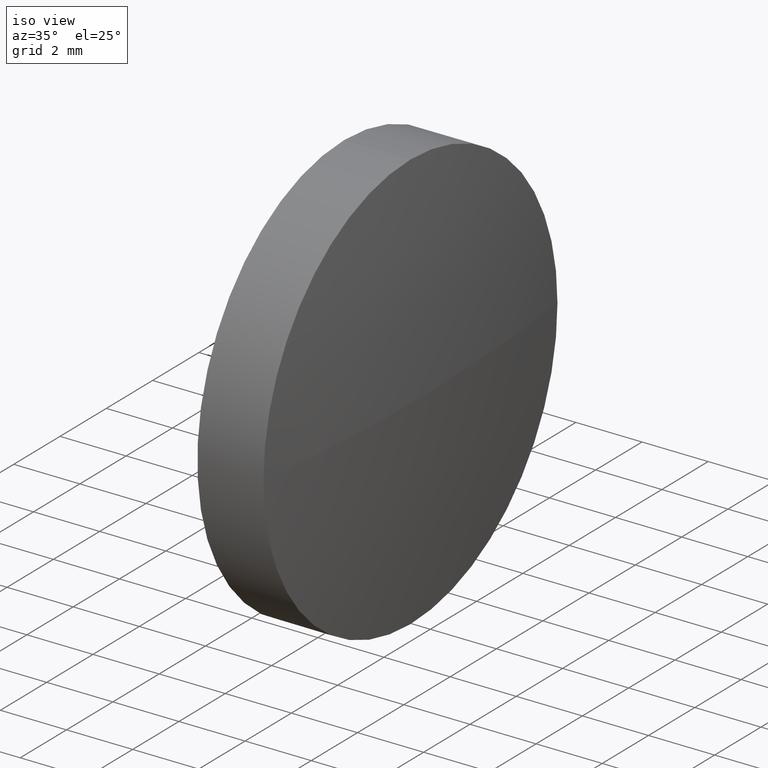
[diagram: clean part render]
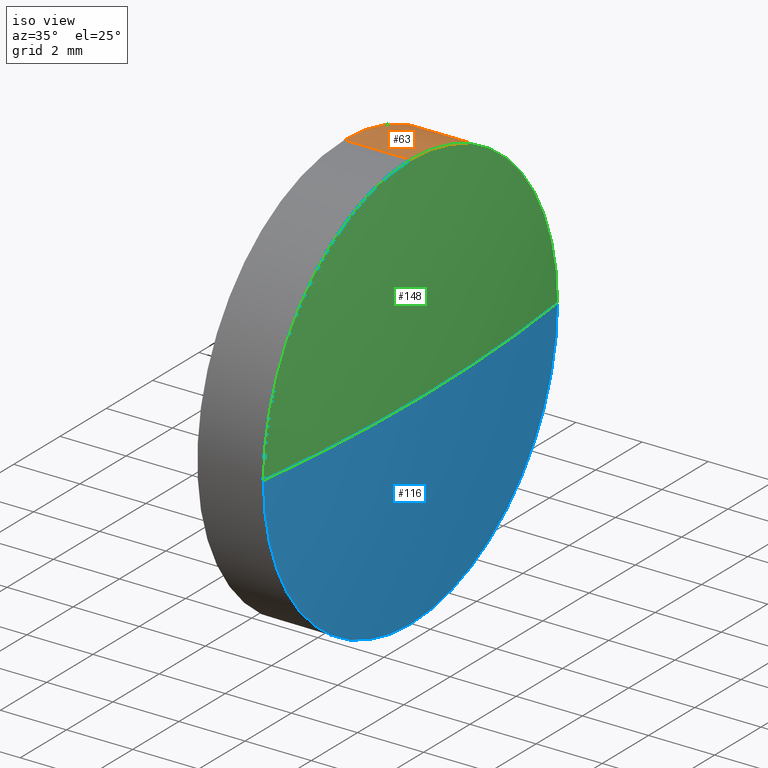
[diagram: same view with three faces highlighted in distinct colors, each labeled with its STEP entity id]
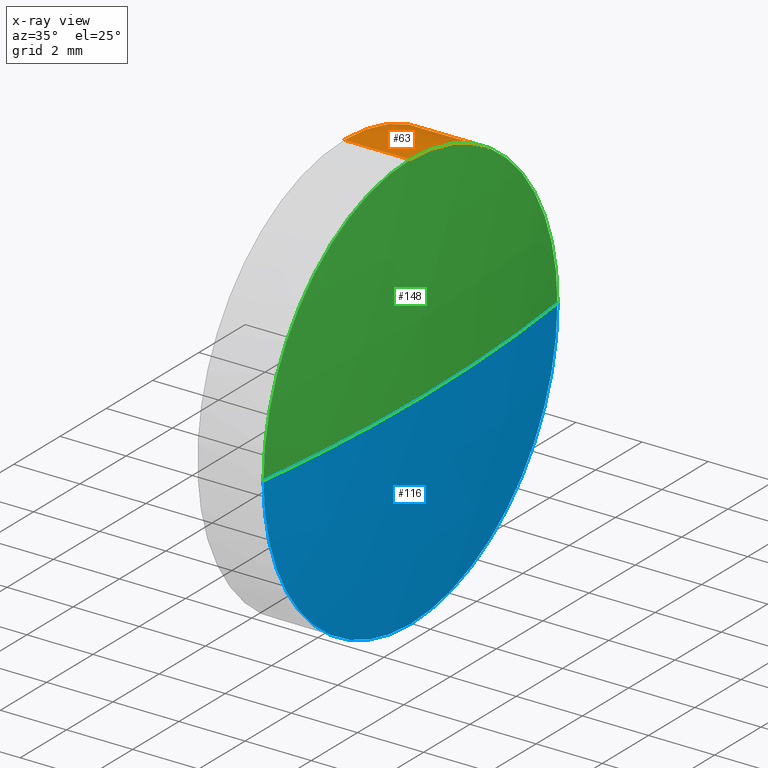
[diagram: x-ray of the same camera — body ghosted, the three highlighted faces saturated]
A machine part, iso view with three faces highlighted in distinct colors.
The next image is the same camera in x-ray (body ghosted, the three faces saturated) — at least one of them is partly hidden behind the body in this view.
Their STEP definitions:

[orange] entity #63 — the highlighted cylindrical surface (partial cylindrical patch) has radius 6.35 mm, axis along (-1, -0, -0).
#1 = ORIENTED_EDGE ( 'NONE', *, *, #145, .T. ) ;
#2 = CARTESIAN_POINT ( 'NONE',  ( 461.7612449843627500, 237.4846222433156100, -6.349999999999994300 ) ) ;
#3 = CARTESIAN_POINT ( 'NONE',  ( 459.7612449843627500, 237.4846222433156100, -6.349999999999994300 ) ) ;
#4 = CYLINDRICAL_SURFACE ( 'NONE', #51, 6.349999999999994300 ) ;
#7 = DIRECTION ( 'NONE',  ( -1.000000000000000000, -0.0000000000000000000, -0.0000000000000000000 ) ) ;
#10 = FACE_OUTER_BOUND ( 'NONE', #64, .T. ) ;
#11 = CARTESIAN_POINT ( 'NONE',  ( 457.5007138385082600, 237.4846222433156100, -6.349999999999994300 ) ) ;
#16 = DIRECTION ( 'NONE',  ( 0.0000000000000000000, 0.0000000000000000000, 1.000000000000000000 ) ) ;
#21 = VERTEX_POINT ( 'NONE', #2 ) ;
#25 = CARTESIAN_POINT ( 'NONE',  ( 457.5007138385082600, 237.4846222433156100, 0.0000000000000000000 ) ) ;
#29 = DIRECTION ( 'NONE',  ( -1.000000000000000000, -0.0000000000000000000, -0.0000000000000000000 ) ) ;
#36 = VECTOR ( 'NONE', #66, 1000.000000000000000 ) ;
#43 = CIRCLE ( 'NONE', #110, 6.349999999999994300 ) ;
#49 = CARTESIAN_POINT ( 'NONE',  ( 461.7612449843627500, 237.4846222433156100, 0.0000000000000000000 ) ) ;
#51 = AXIS2_PLACEMENT_3D ( 'NONE', #25, #7, #76 ) ;
#53 = ORIENTED_EDGE ( 'NONE', *, *, #158, .F. ) ;
#57 = VERTEX_POINT ( 'NONE', #109 ) ;
#59 = CARTESIAN_POINT ( 'NONE',  ( 461.7612449843627500, 237.4846222433156100, 6.349999999999994300 ) ) ;
#63 = ADVANCED_FACE ( 'NONE', ( #10 ), #4, .T. ) ;
#64 = EDGE_LOOP ( 'NONE', ( #126, #1, #177, #53, #87 ) ) ;
#66 = DIRECTION ( 'NONE',  ( -1.000000000000000000, -0.0000000000000000000, -0.0000000000000000000 ) ) ;
#67 = VECTOR ( 'NONE', #162, 1000.000000000000000 ) ;
#72 = VERTEX_POINT ( 'NONE', #3 ) ;
#76 = DIRECTION ( 'NONE',  ( 0.0000000000000000000, 0.0000000000000000000, 1.000000000000000000 ) ) ;
#80 = VERTEX_POINT ( 'NONE', #59 ) ;
#87 = ORIENTED_EDGE ( 'NONE', *, *, #167, .T. ) ;
#88 = DIRECTION ( 'NONE',  ( 0.0000000000000000000, 0.0000000000000000000, 1.000000000000000000 ) ) ;
#89 = DIRECTION ( 'NONE',  ( -1.000000000000000000, -0.0000000000000000000, -0.0000000000000000000 ) ) ;
#90 = LINE ( 'NONE', #159, #36 ) ;
#93 = DIRECTION ( 'NONE',  ( 0.0000000000000000000, 0.0000000000000000000, 1.000000000000000000 ) ) ;
#95 = EDGE_CURVE ( 'NONE', #163, #72, #43, .T. ) ;
#101 = EDGE_CURVE ( 'NONE', #57, #21, #107, .T. ) ;
#107 = CIRCLE ( 'NONE', #114, 6.349999999999994300 ) ;
#109 = CARTESIAN_POINT ( 'NONE',  ( 461.7612449843627500, 243.8346222433156600, 7.776507174585572800E-016 ) ) ;
#110 = AXIS2_PLACEMENT_3D ( 'NONE', #134, #170, #93 ) ;
#114 = AXIS2_PLACEMENT_3D ( 'NONE', #178, #89, #88 ) ;
#125 = LINE ( 'NONE', #11, #67 ) ;
#126 = ORIENTED_EDGE ( 'NONE', *, *, #101, .T. ) ;
#134 = CARTESIAN_POINT ( 'NONE',  ( 459.7612449843627500, 237.4846222433156100, 0.0000000000000000000 ) ) ;
#138 = AXIS2_PLACEMENT_3D ( 'NONE', #49, #29, #16 ) ;
#145 = EDGE_CURVE ( 'NONE', #21, #72, #125, .T. ) ;
#152 = CARTESIAN_POINT ( 'NONE',  ( 459.7612449843627500, 237.4846222433156100, 6.349999999999994300 ) ) ;
#158 = EDGE_CURVE ( 'NONE', #80, #163, #90, .T. ) ;
#159 = CARTESIAN_POINT ( 'NONE',  ( 457.5007138385082600, 237.4846222433156100, 6.349999999999994300 ) ) ;
#162 = DIRECTION ( 'NONE',  ( -1.000000000000000000, -0.0000000000000000000, -0.0000000000000000000 ) ) ;
#163 = VERTEX_POINT ( 'NONE', #152 ) ;
#167 = EDGE_CURVE ( 'NONE', #80, #57, #181, .T. ) ;
#170 = DIRECTION ( 'NONE',  ( -1.000000000000000000, -0.0000000000000000000, -0.0000000000000000000 ) ) ;
#177 = ORIENTED_EDGE ( 'NONE', *, *, #95, .F. ) ;
#178 = CARTESIAN_POINT ( 'NONE',  ( 461.7612449843627500, 237.4846222433156100, 0.0000000000000000000 ) ) ;
#181 = CIRCLE ( 'NONE', #138, 6.349999999999994300 ) ;

[blue] entity #116 — the highlighted spherical surface has radius 50.6031 mm.
#2 = CARTESIAN_POINT ( 'NONE',  ( 461.7612449843627500, 237.4846222433156100, -6.349999999999994300 ) ) ;
#9 = DIRECTION ( 'NONE',  ( 0.0000000000000000000, 0.0000000000000000000, 1.000000000000000000 ) ) ;
#17 = EDGE_CURVE ( 'NONE', #155, #50, #71, .T. ) ;
#18 = CARTESIAN_POINT ( 'NONE',  ( 411.5581199843627500, 237.4846222433157500, 0.0000000000000000000 ) ) ;
#21 = VERTEX_POINT ( 'NONE', #2 ) ;
#23 = EDGE_CURVE ( 'NONE', #21, #50, #83, .T. ) ;
#27 = ORIENTED_EDGE ( 'NONE', *, *, #23, .F. ) ;
#31 = EDGE_LOOP ( 'NONE', ( #169, #139, #27, #69 ) ) ;
#35 = DIRECTION ( 'NONE',  ( 0.0000000000000000000, 0.0000000000000000000, 1.000000000000000000 ) ) ;
#47 = DIRECTION ( 'NONE',  ( 0.0000000000000000000, -1.000000000000000000, 0.0000000000000000000 ) ) ;
#50 = VERTEX_POINT ( 'NONE', #54 ) ;
#54 = CARTESIAN_POINT ( 'NONE',  ( 461.7612449843627500, 231.1346222433157000, 0.0000000000000000000 ) ) ;
#57 = VERTEX_POINT ( 'NONE', #109 ) ;
#58 = AXIS2_PLACEMENT_3D ( 'NONE', #18, #85, #127 ) ;
#69 = ORIENTED_EDGE ( 'NONE', *, *, #101, .F. ) ;
#71 = CIRCLE ( 'NONE', #58, 50.60312500000002700 ) ;
#73 = CIRCLE ( 'NONE', #124, 50.60312499999999900 ) ;
#74 = CARTESIAN_POINT ( 'NONE',  ( 462.1612449843627800, 237.4846222433157500, 0.0000000000000000000 ) ) ;
#83 = CIRCLE ( 'NONE', #106, 6.349999999999994300 ) ;
#85 = DIRECTION ( 'NONE',  ( 0.0000000000000000000, 0.0000000000000000000, -1.000000000000000000 ) ) ;
#88 = DIRECTION ( 'NONE',  ( 0.0000000000000000000, 0.0000000000000000000, 1.000000000000000000 ) ) ;
#89 = DIRECTION ( 'NONE',  ( -1.000000000000000000, -0.0000000000000000000, -0.0000000000000000000 ) ) ;
#91 = CARTESIAN_POINT ( 'NONE',  ( 411.5581199843627500, 237.4846222433157500, 0.0000000000000000000 ) ) ;
#98 = CARTESIAN_POINT ( 'NONE',  ( 461.7612449843627500, 237.4846222433156100, 0.0000000000000000000 ) ) ;
#101 = EDGE_CURVE ( 'NONE', #57, #21, #107, .T. ) ;
#106 = AXIS2_PLACEMENT_3D ( 'NONE', #98, #128, #35 ) ;
#107 = CIRCLE ( 'NONE', #114, 6.349999999999994300 ) ;
#108 = SPHERICAL_SURFACE ( 'NONE', #168, 50.60312500000001300 ) ;
#109 = CARTESIAN_POINT ( 'NONE',  ( 461.7612449843627500, 243.8346222433156600, 7.776507174585572800E-016 ) ) ;
#114 = AXIS2_PLACEMENT_3D ( 'NONE', #178, #89, #88 ) ;
#116 = ADVANCED_FACE ( 'NONE', ( #129 ), #108, .T. ) ;
#122 = CARTESIAN_POINT ( 'NONE',  ( 411.5581199843627500, 237.4846222433157500, 0.0000000000000000000 ) ) ;
#124 = AXIS2_PLACEMENT_3D ( 'NONE', #122, #185, #137 ) ;
#127 = DIRECTION ( 'NONE',  ( -1.000000000000000000, 0.0000000000000000000, 0.0000000000000000000 ) ) ;
#128 = DIRECTION ( 'NONE',  ( -1.000000000000000000, -0.0000000000000000000, -0.0000000000000000000 ) ) ;
#129 = FACE_OUTER_BOUND ( 'NONE', #31, .T. ) ;
#137 = DIRECTION ( 'NONE',  ( 0.0000000000000000000, -1.000000000000000000, -1.224646799147353700E-016 ) ) ;
#139 = ORIENTED_EDGE ( 'NONE', *, *, #17, .T. ) ;
#155 = VERTEX_POINT ( 'NONE', #74 ) ;
#168 = AXIS2_PLACEMENT_3D ( 'NONE', #91, #9, #47 ) ;
#169 = ORIENTED_EDGE ( 'NONE', *, *, #173, .F. ) ;
#173 = EDGE_CURVE ( 'NONE', #155, #57, #73, .T. ) ;
#178 = CARTESIAN_POINT ( 'NONE',  ( 461.7612449843627500, 237.4846222433156100, 0.0000000000000000000 ) ) ;
#185 = DIRECTION ( 'NONE',  ( 0.0000000000000000000, -1.224646799147353200E-016, 1.000000000000000000 ) ) ;

[green] entity #148 — the highlighted spherical surface has radius 50.6031 mm.
#13 = CARTESIAN_POINT ( 'NONE',  ( 461.7612449843627500, 237.4846222433156100, 0.0000000000000000000 ) ) ;
#16 = DIRECTION ( 'NONE',  ( 0.0000000000000000000, 0.0000000000000000000, 1.000000000000000000 ) ) ;
#17 = EDGE_CURVE ( 'NONE', #155, #50, #71, .T. ) ;
#18 = CARTESIAN_POINT ( 'NONE',  ( 411.5581199843627500, 237.4846222433157500, 0.0000000000000000000 ) ) ;
#29 = DIRECTION ( 'NONE',  ( -1.000000000000000000, -0.0000000000000000000, -0.0000000000000000000 ) ) ;
#44 = EDGE_LOOP ( 'NONE', ( #111, #133, #186, #150 ) ) ;
#45 = DIRECTION ( 'NONE',  ( 0.0000000000000000000, 0.0000000000000000000, 1.000000000000000000 ) ) ;
#49 = CARTESIAN_POINT ( 'NONE',  ( 461.7612449843627500, 237.4846222433156100, 0.0000000000000000000 ) ) ;
#50 = VERTEX_POINT ( 'NONE', #54 ) ;
#54 = CARTESIAN_POINT ( 'NONE',  ( 461.7612449843627500, 231.1346222433157000, 0.0000000000000000000 ) ) ;
#57 = VERTEX_POINT ( 'NONE', #109 ) ;
#58 = AXIS2_PLACEMENT_3D ( 'NONE', #18, #85, #127 ) ;
#59 = CARTESIAN_POINT ( 'NONE',  ( 461.7612449843627500, 237.4846222433156100, 6.349999999999994300 ) ) ;
#61 = CIRCLE ( 'NONE', #86, 6.349999999999994300 ) ;
#71 = CIRCLE ( 'NONE', #58, 50.60312500000002700 ) ;
#73 = CIRCLE ( 'NONE', #124, 50.60312499999999900 ) ;
#74 = CARTESIAN_POINT ( 'NONE',  ( 462.1612449843627800, 237.4846222433157500, 0.0000000000000000000 ) ) ;
#80 = VERTEX_POINT ( 'NONE', #59 ) ;
#85 = DIRECTION ( 'NONE',  ( 0.0000000000000000000, 0.0000000000000000000, -1.000000000000000000 ) ) ;
#86 = AXIS2_PLACEMENT_3D ( 'NONE', #13, #171, #120 ) ;
#109 = CARTESIAN_POINT ( 'NONE',  ( 461.7612449843627500, 243.8346222433156600, 7.776507174585572800E-016 ) ) ;
#111 = ORIENTED_EDGE ( 'NONE', *, *, #17, .F. ) ;
#118 = FACE_OUTER_BOUND ( 'NONE', #44, .T. ) ;
#120 = DIRECTION ( 'NONE',  ( 0.0000000000000000000, 0.0000000000000000000, 1.000000000000000000 ) ) ;
#122 = CARTESIAN_POINT ( 'NONE',  ( 411.5581199843627500, 237.4846222433157500, 0.0000000000000000000 ) ) ;
#124 = AXIS2_PLACEMENT_3D ( 'NONE', #122, #185, #137 ) ;
#127 = DIRECTION ( 'NONE',  ( -1.000000000000000000, 0.0000000000000000000, 0.0000000000000000000 ) ) ;
#133 = ORIENTED_EDGE ( 'NONE', *, *, #173, .T. ) ;
#137 = DIRECTION ( 'NONE',  ( 0.0000000000000000000, -1.000000000000000000, -1.224646799147353700E-016 ) ) ;
#138 = AXIS2_PLACEMENT_3D ( 'NONE', #49, #29, #16 ) ;
#141 = EDGE_CURVE ( 'NONE', #50, #80, #61, .T. ) ;
#143 = AXIS2_PLACEMENT_3D ( 'NONE', #182, #45, #184 ) ;
#148 = ADVANCED_FACE ( 'NONE', ( #118 ), #153, .T. ) ;
#150 = ORIENTED_EDGE ( 'NONE', *, *, #141, .F. ) ;
#153 = SPHERICAL_SURFACE ( 'NONE', #143, 50.60312500000001300 ) ;
#155 = VERTEX_POINT ( 'NONE', #74 ) ;
#167 = EDGE_CURVE ( 'NONE', #80, #57, #181, .T. ) ;
#171 = DIRECTION ( 'NONE',  ( -1.000000000000000000, -0.0000000000000000000, -0.0000000000000000000 ) ) ;
#173 = EDGE_CURVE ( 'NONE', #155, #57, #73, .T. ) ;
#181 = CIRCLE ( 'NONE', #138, 6.349999999999994300 ) ;
#182 = CARTESIAN_POINT ( 'NONE',  ( 411.5581199843627500, 237.4846222433157500, 0.0000000000000000000 ) ) ;
#184 = DIRECTION ( 'NONE',  ( 0.0000000000000000000, -1.000000000000000000, 0.0000000000000000000 ) ) ;
#185 = DIRECTION ( 'NONE',  ( 0.0000000000000000000, -1.224646799147353200E-016, 1.000000000000000000 ) ) ;
#186 = ORIENTED_EDGE ( 'NONE', *, *, #167, .F. ) ;